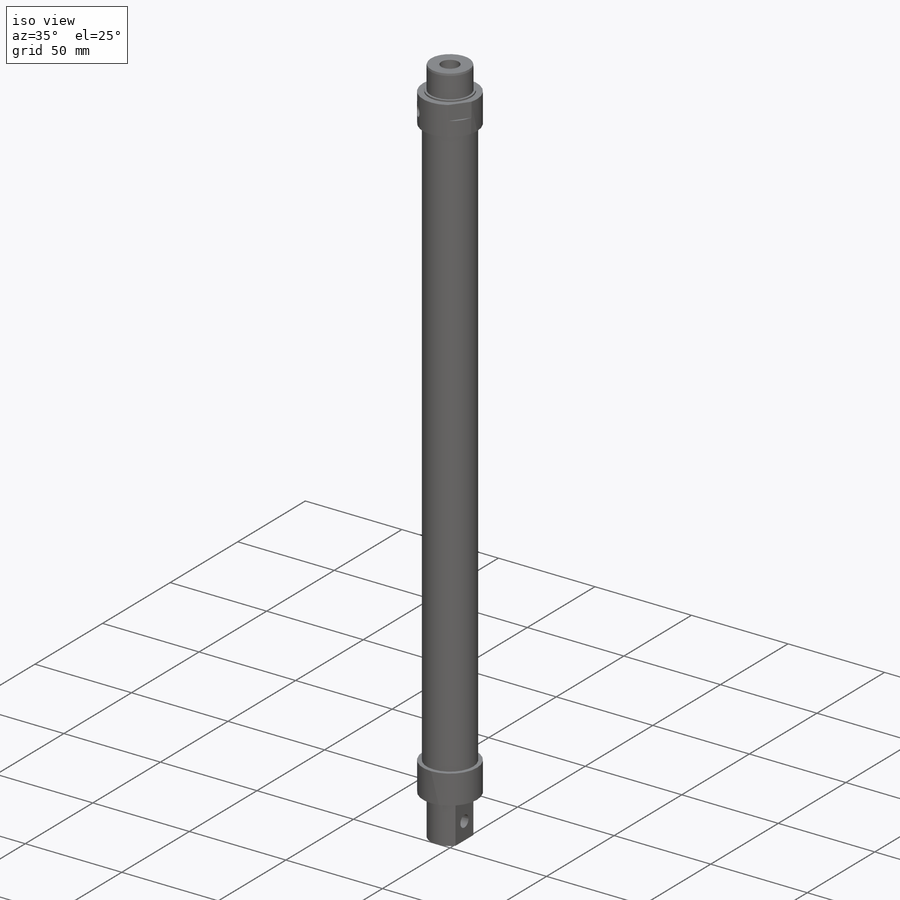
[diagram: iso view]
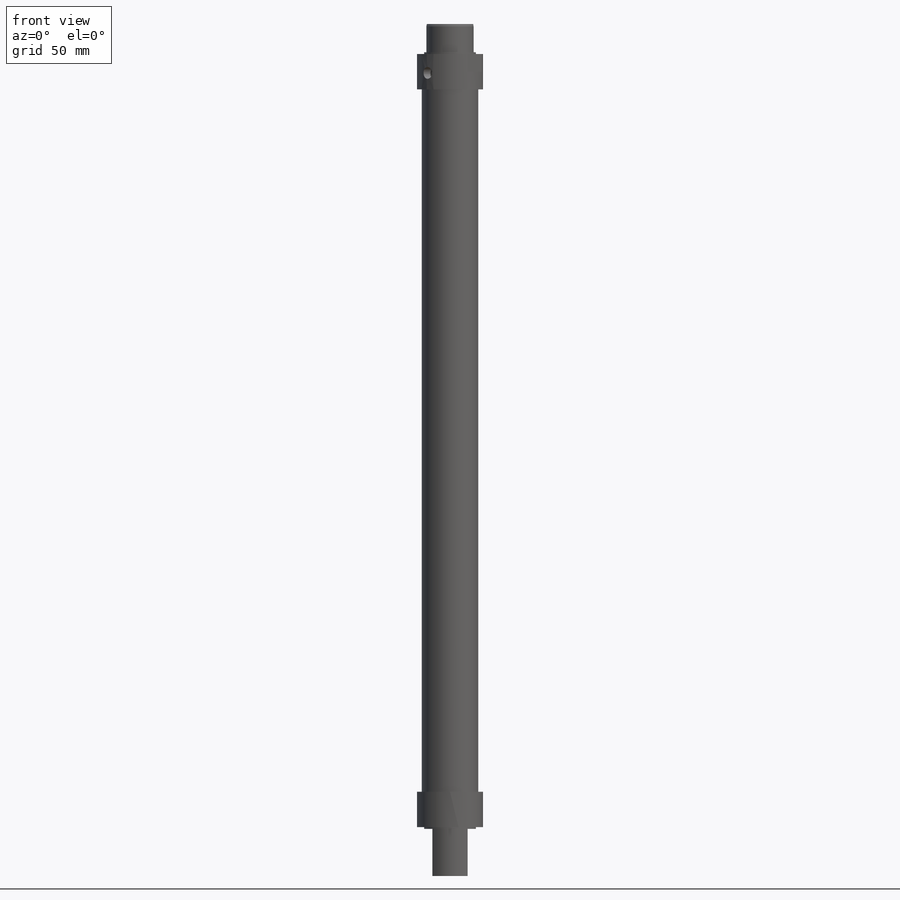
[diagram: front view]
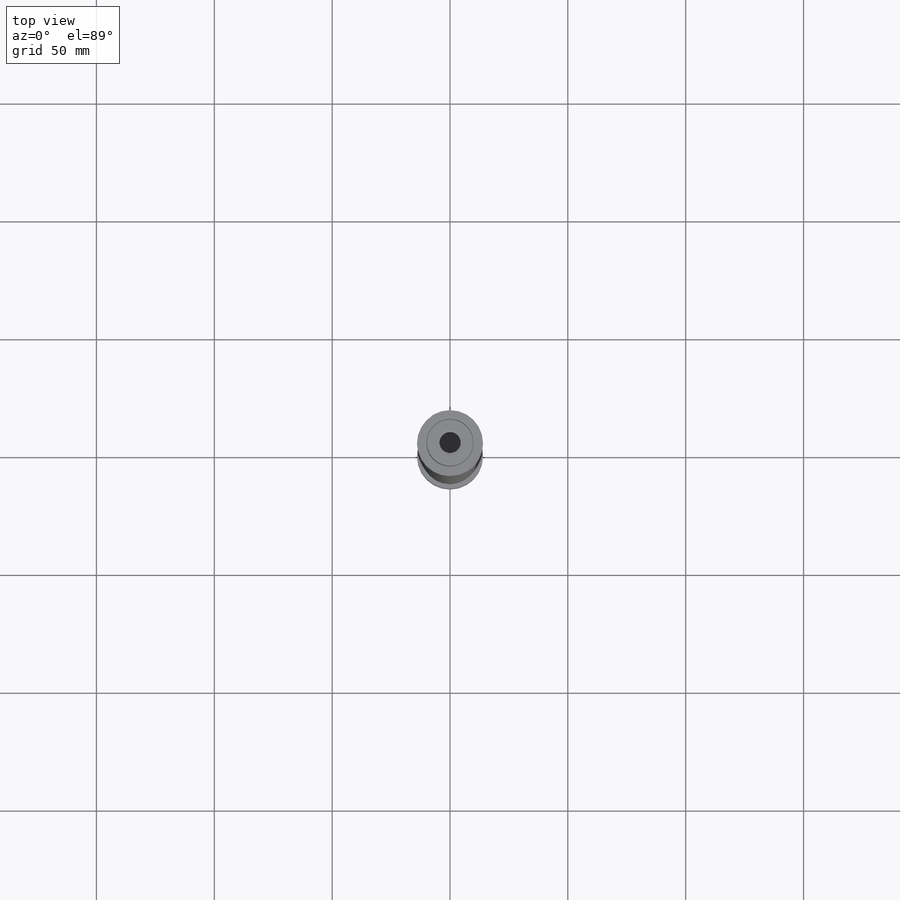
[diagram: top view]
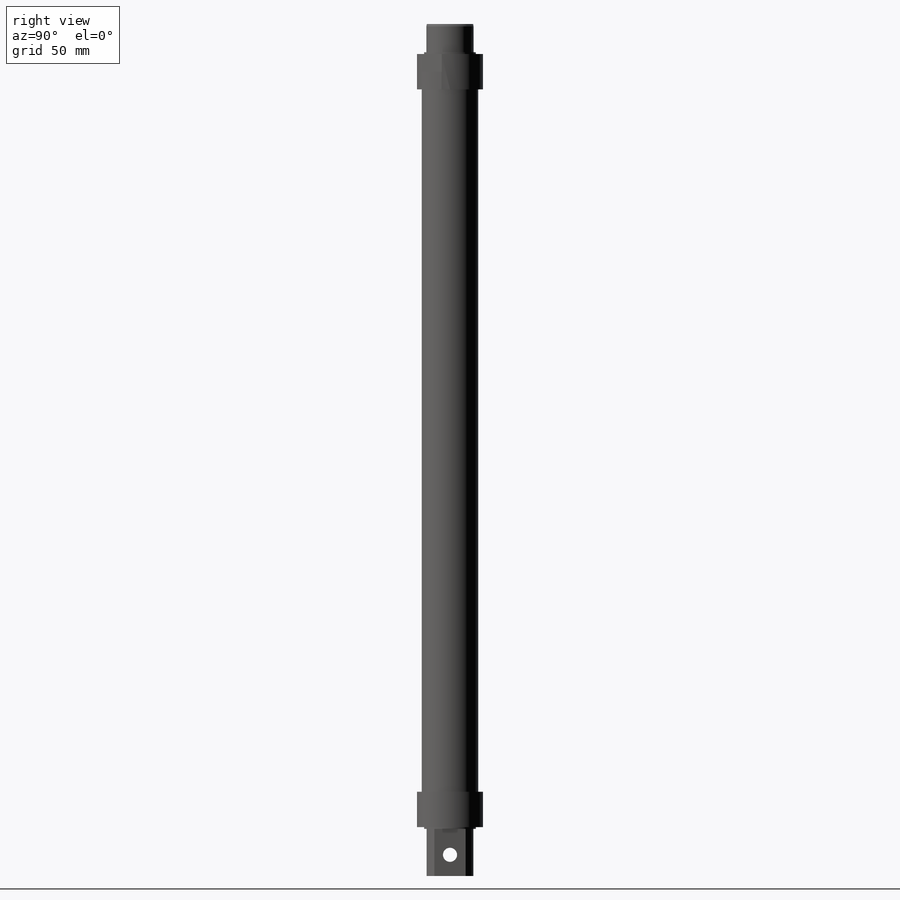
[diagram: right view]
SOLIDWORKS PART (.sldprt)
format: sldprt  version: not decoded by parser v0  size: 294,912 bytes
history: native  units: mm
features: sketch x13, extrude x7, cut_extrude x5, plane x3, material x1, mirror x1, chamfer x1 (+13 scaffold rows collapsed)
feature tree (44):
  scaffold x13  (default folders/planes/origin — collapsed)
  material  "Material <not specified>"
  sketch  "Sketch1"  dims[c1.D1=20.0mm c1.D2=20.0mm c2.D1=2.0mm]
  extrude  "Boss-Extrude1"  Depth=298mm
  sketch  "Sketch2"  dims[D1=20.0mm D2=4.0mm]
  extrude  "Boss-Extrude2"  Depth=15mm
  sketch  "Sketch3"
  plane  "Plane1"
  sketch  "Sketch4"  dims[D1=7.5mm D2=12.0mm]
  cut_extrude  "Cut-Extrude1"  Depth=1mm
  plane  "Plane2"  Offset=14mm
  mirror  "Mirror1"
  plane  "Plane3"
  sketch  "Sketch5"  dims[D2=5.0mm D1=8.0mm]
  cut_extrude  "Cut-Extrude2"  Depth=5mm
  sketch  "Sketch6"  dims[D1=22.0mm]
  extrude  "Boss-Extrude3"  Depth=0.75mm
  sketch  "Sketch7"  dims[D1=~10.220133mm]
  extrude  "Boss-Extrude4"  Depth=12mm
  sketch  "Sketch9"  dims[c1.D1=20.0mm c1.D2=20.0mm c1.D3=24.0mm c2.D2=4.0mm]
  extrude  "Boss-Extrude6"  Depth=15mm
  sketch  "Sketch10"  dims[D1=22.0mm]
  extrude  "Boss-Extrude7"  Depth=0.75mm
  sketch  "Sketch11"  dims[D1=20.0mm]
  extrude  "Boss-Extrude8"  Depth=20mm
  sketch  "Sketch12"  dims[D1=7.5mm]
  cut_extrude  "Cut-Extrude4"  Depth=20mm
  sketch  "Sketch13"  dims[D2=~2.859724mm D1=9.0mm]
  cut_extrude  "Cut-Extrude5"  [1 undecoded]
  sketch  "Sketch14"  dims[D1=~4.902834mm]
  cut_extrude  "Cut-Extrude6"  Depth=70mm
  chamfer  "Chamfer1"  Distance=1mm Angle=10deg
decode coverage: 24 of 27 modeling features carry decoded parameters
note: ~ marks probable driven/reference dimensions
note: 1 parameter value undecoded
note: suppression state not decoded; provenance and decode notes live in map.json
